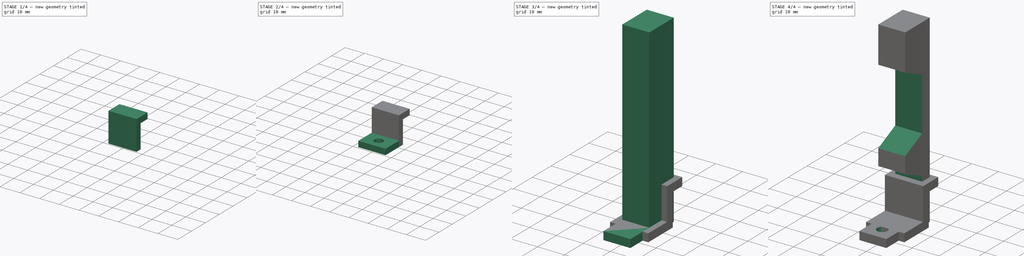
[diagram: build sequence overview — one tinted view per stage of 4, left to right]
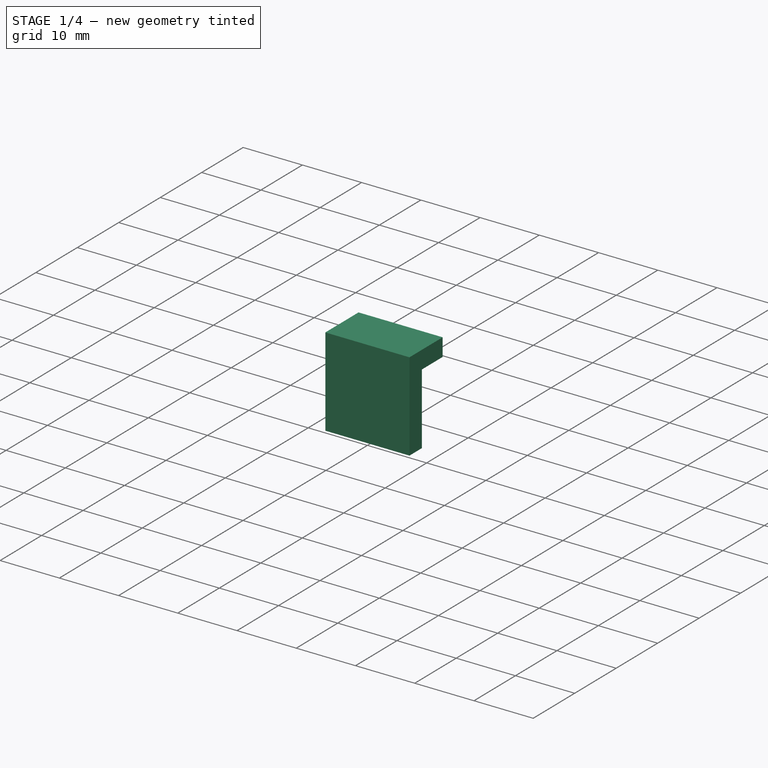
[diagram: stage 1 of 4 — iso view after this stage's code; geometry added in this stage tinted green]
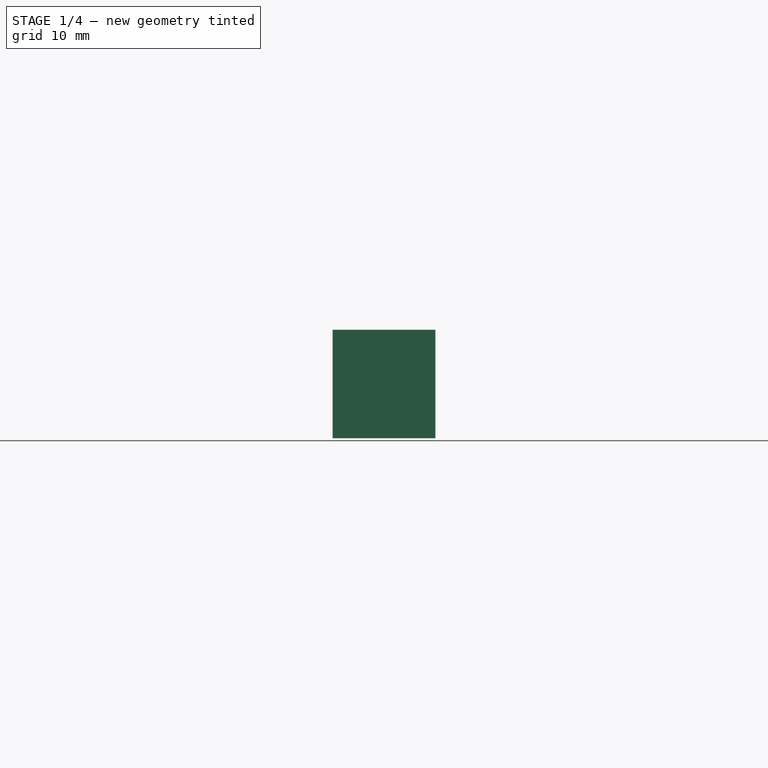
[diagram: stage 1 of 4 — front view after this stage's code; geometry added in this stage tinted green]
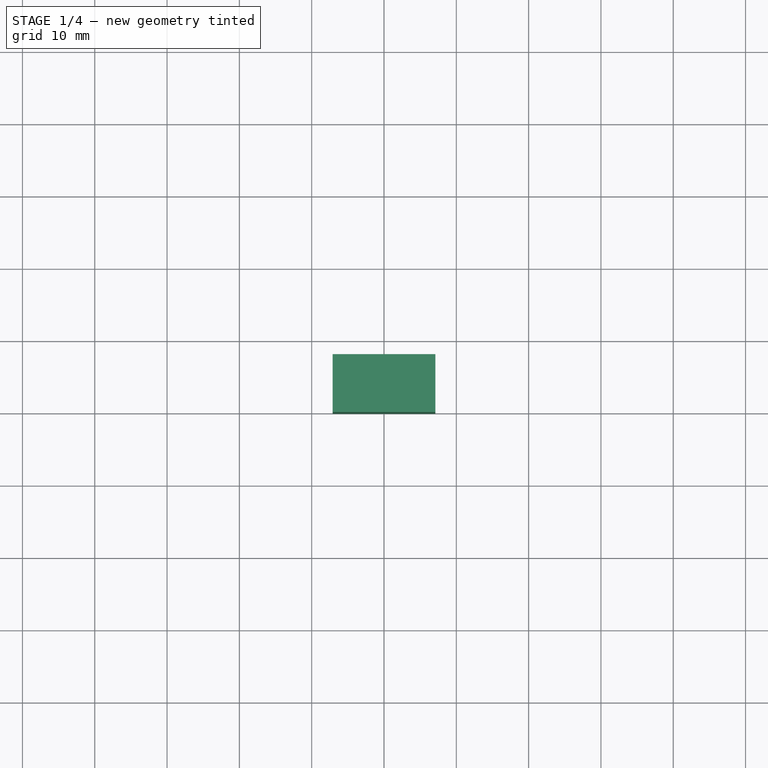
[diagram: stage 1 of 4 — top view after this stage's code; geometry added in this stage tinted green]
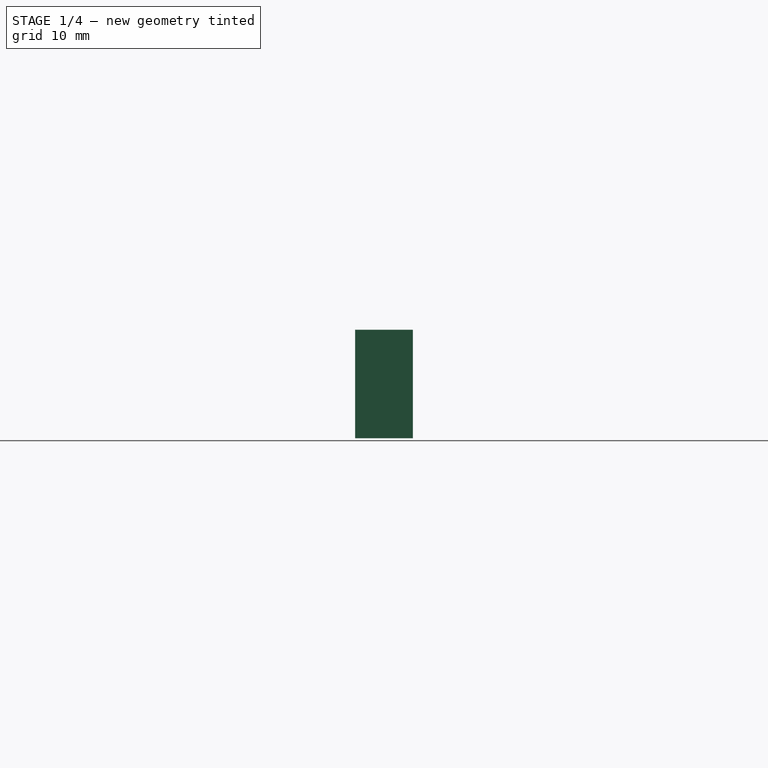
[diagram: stage 1 of 4 — right view after this stage's code; geometry added in this stage tinted green]
FCSTD DOCUMENT  (FreeCAD 0.18R14555 (Git shallow))
Label: MotorControllerMount
License: All rights reserved
LicenseURL: http://en.wikipedia.org/wiki/All_rights_reserved
objects: Sketcher::SketchObject×9, PartDesign::Pad×5, PartDesign::Hole×3, PartDesign::Body×2, PartDesign::Pocket×1
note: 29 computed .brp shape members not serialized (recipe doc carries the construction recipe); baked Part::Feature solids carry a one-line shape summary decoded from their .brp

FEATURE [PartDesign::Body] Body  label="Body1"
  Group = -> [Sketch,Pad,Sketch001,Pad001,Sketch002,Hole,Sketch003,Pocket,Sketch004,Hole001]
  Origin = -> Origin
  Tip = -> Hole001
FEATURE [Sketcher::SketchObject] Sketch005
  MapMode = 5
  Support = -> [XY_Plane001]
  sketch-geometry (8):
    g0: LineSegment StartX=-2.1 StartY=8 StartZ=0 EndX=-2.1 EndY=3 EndZ=0
    g1: LineSegment StartX=-2.1 StartY=3 StartZ=0 EndX=-7.1 EndY=3 EndZ=0
    g2: LineSegment StartX=-7.1 StartY=3 StartZ=0 EndX=-7.1 EndY=0 EndZ=0
    g3: LineSegment StartX=-7.1 StartY=0 StartZ=0 EndX=7.1 EndY=0 EndZ=0
    g4: LineSegment StartX=7.1 StartY=0 StartZ=0 EndX=7.1 EndY=3 EndZ=0
    g5: LineSegment StartX=7.1 StartY=3 StartZ=0 EndX=2.1 EndY=3 EndZ=0
    g6: LineSegment StartX=2.1 StartY=3 StartZ=0 EndX=2.1 EndY=8 EndZ=0
    g7: LineSegment StartX=2.1 StartY=8 StartZ=0 EndX=-2.1 EndY=8 EndZ=0
  constraints (22):
    c: Coincident(g0,g1)
    c: Coincident(g1,g2)
    c: Coincident(g2,g3)
    c: Coincident(g3,g4)
    c: Coincident(g4,g5)
    c: Coincident(g5,g6)
    c: Coincident(g6,g7)
    c: Coincident(g7,g0)
    c: DistanceX(g7,g7) = 4.2
    c: Symmetric(g2,g3,g-2)
    c: Symmetric(g0,g6,g-2)
    c: Vertical(g2)
    c: Vertical(g4)
    c: Horizontal(g1)
    c: Horizontal(g5)
    c: Vertical(g0)
    c: Vertical(g6)
    c: Horizontal(g5,g0)
    c: DistanceY(g6,g6) = 5
    c: DistanceX(g5,g5) = 5
    c: DistanceY(g4,g4) = 3
    c: PointOnObject(g2,g-1)
FEATURE [PartDesign::Pad] Pad002
  Length = 15
  Length2 = 100
  Profile = -> Sketch005
  Type = 0
FEATURE [Sketcher::SketchObject] Sketch006
  ExternalGeometry = -> [Pad002]
  MapMode = 5
  Placement = pos=(2.1,0,0) rot=(0.57735,0.57735,0.57735;2.0944rad)
  Support = -> [Pad002]
  sketch-geometry (4):
    g0: LineSegment StartX=3 StartY=15 StartZ=0 EndX=8 EndY=15 EndZ=0
    g1: LineSegment StartX=8 StartY=15 StartZ=0 EndX=8 EndY=12 EndZ=0
    g2: LineSegment StartX=8 StartY=12 StartZ=0 EndX=3 EndY=12 EndZ=0
    g3: LineSegment StartX=3 StartY=12 StartZ=0 EndX=3 EndY=15 EndZ=0
  constraints (10):
    c: Coincident(g0,g1)
    c: Coincident(g1,g2)
    c: Coincident(g2,g3)
    c: Coincident(g3,g0)
    c: Horizontal(g2)
    c: Vertical(g1)
    c: Vertical(g3)
    c: DistanceY(g-3,g1) = 12
    c: Coincident(g0,g-3)
    c: Coincident(g0,g-4)
FEATURE [PartDesign::Pad] Pad003
  BaseFeature = -> Pad002
  Length = 5
  Length2 = 9.2
  Profile = -> Sketch006
  Type = 4
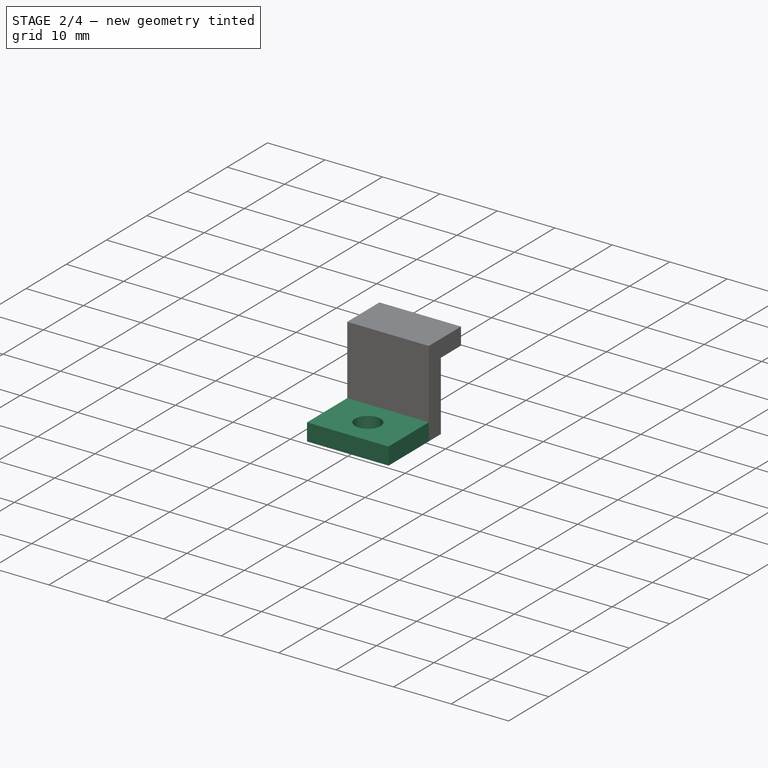
[diagram: stage 2 of 4 — iso view after this stage's code; geometry added in this stage tinted green]
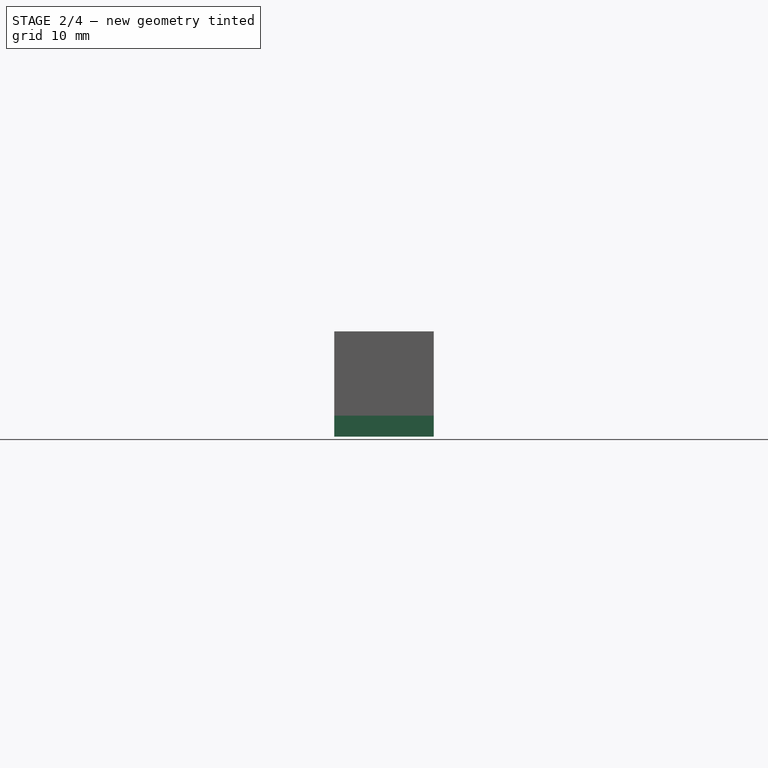
[diagram: stage 2 of 4 — front view after this stage's code; geometry added in this stage tinted green]
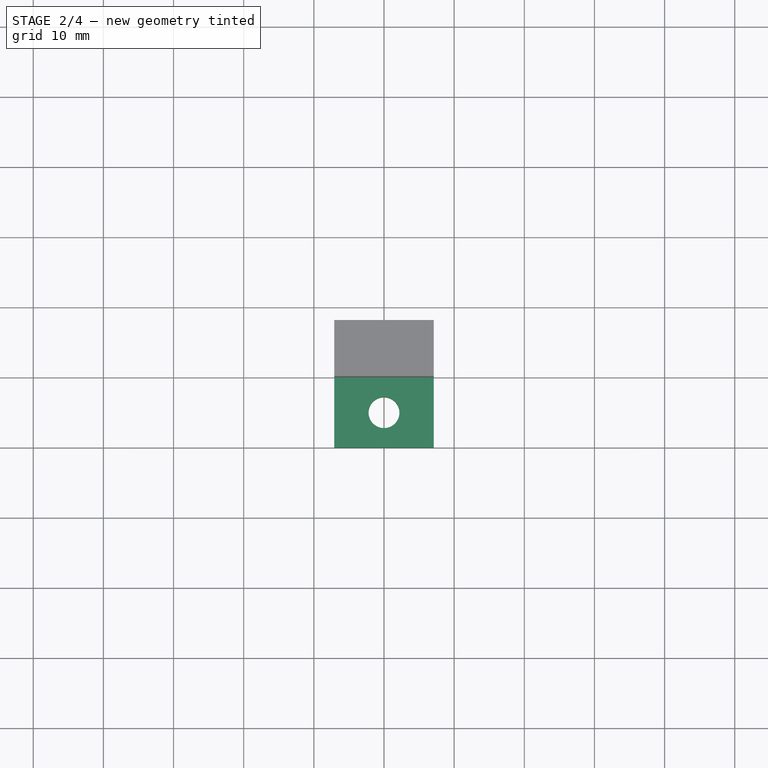
[diagram: stage 2 of 4 — top view after this stage's code; geometry added in this stage tinted green]
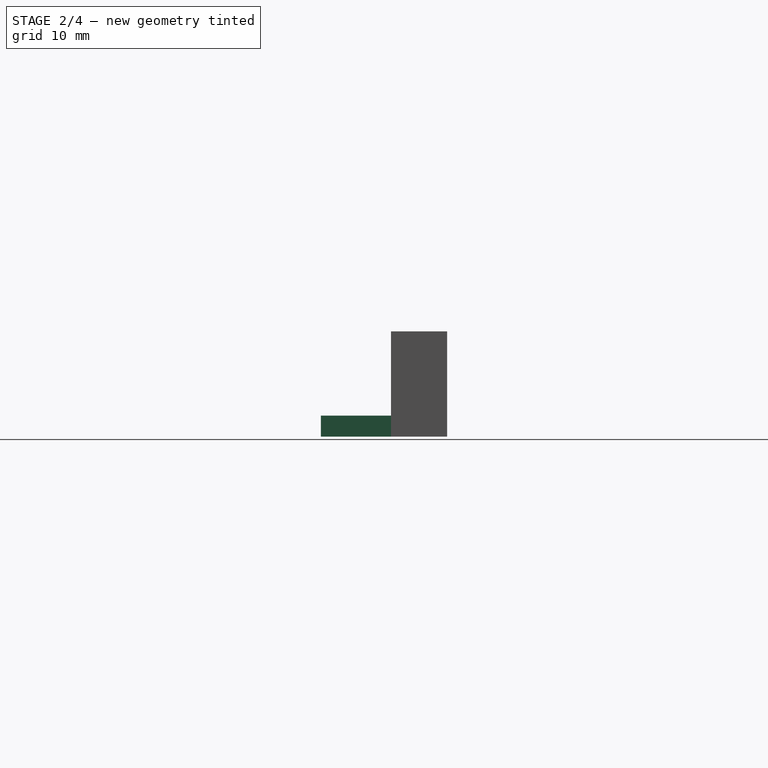
[diagram: stage 2 of 4 — right view after this stage's code; geometry added in this stage tinted green]
FEATURE [Sketcher::SketchObject] Sketch007
  ExternalGeometry = -> [Pad003]
  MapMode = 5
  Placement = pos=(0,0,0) rot=(1,0,0;1.5708rad)
  Support = -> [Pad003]
  sketch-geometry (4):
    g0: LineSegment StartX=-7.1 StartY=3 StartZ=0 EndX=7.1 EndY=3 EndZ=0
    g1: LineSegment StartX=7.1 StartY=3 StartZ=0 EndX=7.1 EndY=0 EndZ=0
    g2: LineSegment StartX=7.1 StartY=0 StartZ=0 EndX=-7.1 EndY=0 EndZ=0
    g3: LineSegment StartX=-7.1 StartY=0 StartZ=0 EndX=-7.1 EndY=3 EndZ=0
  constraints (10):
    c: Coincident(g0,g1)
    c: Coincident(g1,g2)
    c: Coincident(g2,g3)
    c: Coincident(g3,g0)
    c: Horizontal(g0)
    c: Vertical(g1)
    c: Vertical(g3)
    c: Coincident(g1,g-3)
    c: Coincident(g2,g-3)
    c: DistanceY(g1,g1) = 3
FEATURE [PartDesign::Pad] Pad004
  BaseFeature = -> Pad003
  Length = 10
  Length2 = 100
  Profile = -> Sketch007
  Type = 0
FEATURE [Sketcher::SketchObject] Sketch008
  ExternalGeometry = -> [Pad004]
  MapMode = 5
  Placement = pos=(0,7e-16,3) rot=(0,0,1;0rad)
  Support = -> [Pad004]
  sketch-geometry (3):
    g0: LineSegment [constr] StartX=-7.1 StartY=0 StartZ=0 EndX=7.1 EndY=-10 EndZ=0
    g1: LineSegment [constr] StartX=7.1 StartY=0 StartZ=0 EndX=-7.1 EndY=-10 EndZ=0
    g2: Circle CenterX=1e-16 CenterY=-5 CenterZ=0 NormalX=0 NormalY=0 NormalZ=1 AngleXU=0 Radius=1.5
  constraints (7):
    c: Coincident(g1,g-3)
    c: Coincident(g-4,g1)
    c: Coincident(g0,g-4)
    c: Coincident(g0,g-3)
    c: Radius(g2) = 1.5
    c: PointOnObject(g2,g0)
    c: PointOnObject(g2,g1)
FEATURE [PartDesign::Hole] Hole002
  BaseFeature = -> Pad004
  Depth = 25
  DepthType = 0
  Diameter = 4.4
  DrillPoint = 1
  DrillPointAngle = 118
  HoleCutCountersinkAngle = 90
  HoleCutDepth = 0
  HoleCutDiameter = 4
  HoleCutType = 0
  ModelActualThread = false
  Profile = -> Sketch008
  Tapered = false
  TaperedAngle = 90
  ThreadAngle = 0
  ThreadClass = 0
  ThreadCutOffInner = 0
  ThreadCutOffOuter = 0
  ThreadDirection = 0
  ThreadFit = 0
  ThreadPitch = 0
  ThreadSize = 11
  ThreadType = 2
  Threaded = false
FEATURE [PartDesign::Body] Body001  label="Body2"
  Group = -> [Sketch005,Pad002,Sketch006,Pad003,Sketch007,Pad004,Sketch008,Hole002]
  Origin = -> Origin001
  Tip = -> Hole002
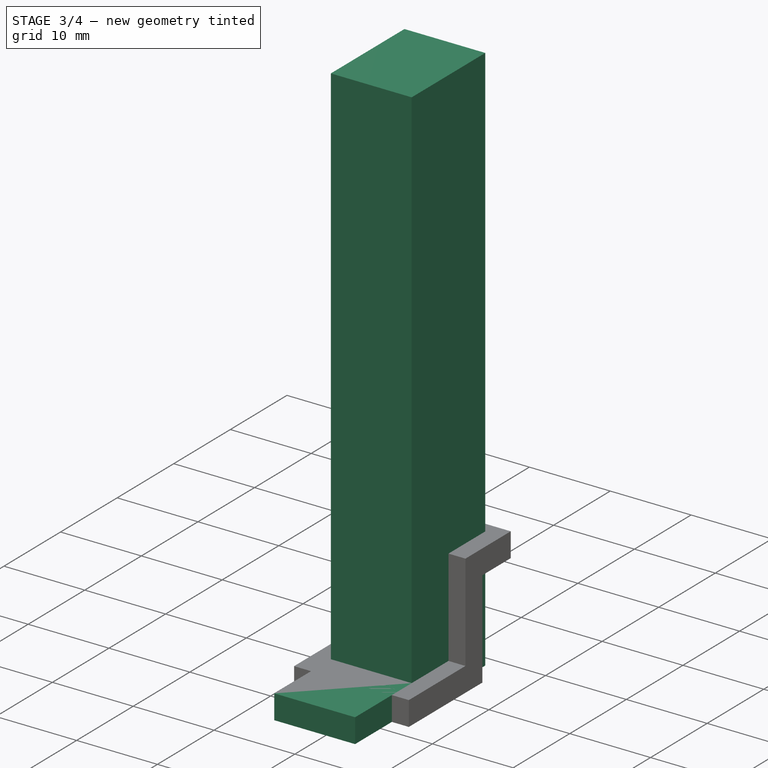
[diagram: stage 3 of 4 — iso view after this stage's code; geometry added in this stage tinted green]
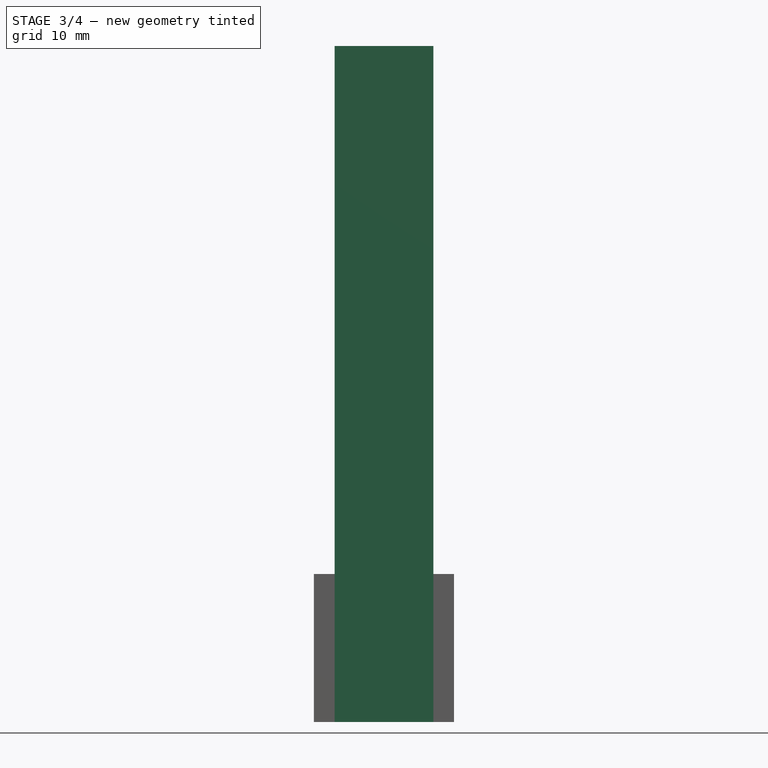
[diagram: stage 3 of 4 — front view after this stage's code; geometry added in this stage tinted green]
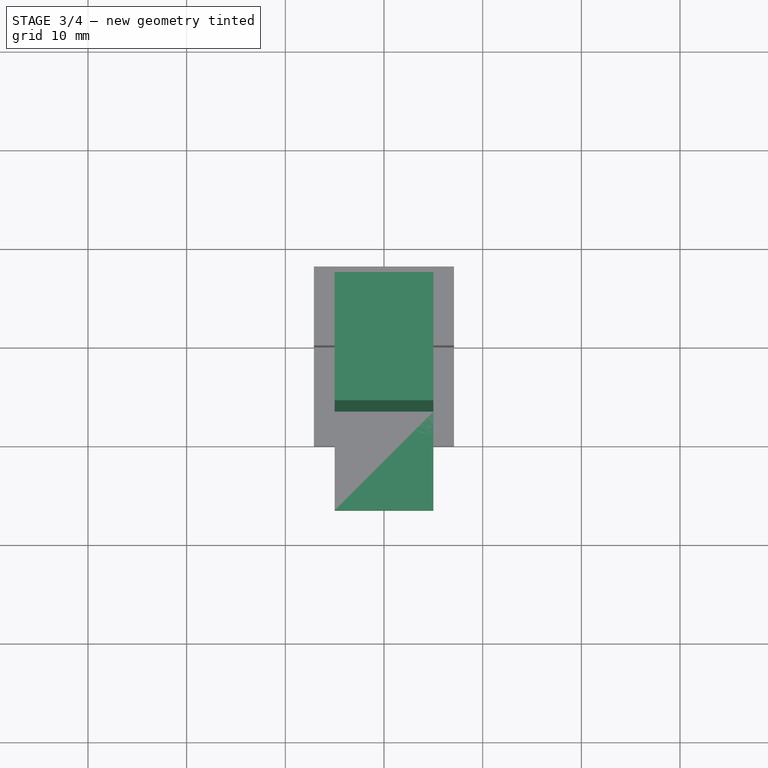
[diagram: stage 3 of 4 — top view after this stage's code; geometry added in this stage tinted green]
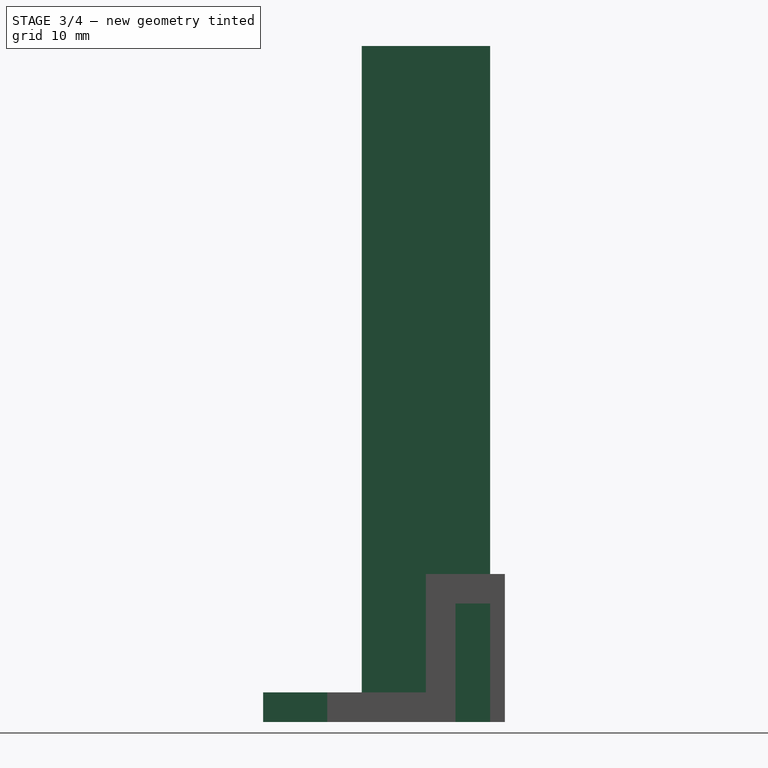
[diagram: stage 3 of 4 — right view after this stage's code; geometry added in this stage tinted green]
FEATURE [Sketcher::SketchObject] Sketch
  MapMode = 5
  Support = -> [XY_Plane]
  sketch-geometry (4):
    g0: LineSegment StartX=-5 StartY=6.5 StartZ=0 EndX=5 EndY=6.5 EndZ=0
    g1: LineSegment StartX=5 StartY=6.5 StartZ=0 EndX=5 EndY=-6.5 EndZ=0
    g2: LineSegment StartX=5 StartY=-6.5 StartZ=0 EndX=-5 EndY=-6.5 EndZ=0
    g3: LineSegment StartX=-5 StartY=-6.5 StartZ=0 EndX=-5 EndY=6.5 EndZ=0
  constraints (10):
    c: Coincident(g0,g1)
    c: Coincident(g1,g2)
    c: Coincident(g2,g3)
    c: Coincident(g3,g0)
    c: Horizontal(g2)
    c: Vertical(g3)
    c: Symmetric(g0,g0,g-2)
    c: Symmetric(g1,g0,g-1)
    c: DistanceX(g2,g2) = 10
    c: DistanceY(g1,g1) = 13
FEATURE [PartDesign::Pad] Pad
  Length = 68.5
  Length2 = 100
  Profile = -> Sketch
  Type = 0
FEATURE [Sketcher::SketchObject] Sketch001
  ExternalGeometry = -> [Pad]
  MapMode = 5
  Placement = pos=(0,-6.5,0) rot=(1,0,0;1.5708rad)
  Support = -> [Pad]
  sketch-geometry (4):
    g0: LineSegment StartX=-5 StartY=3 StartZ=0 EndX=5 EndY=3 EndZ=0
    g1: LineSegment StartX=5 StartY=3 StartZ=0 EndX=5 EndY=0 EndZ=0
    g2: LineSegment StartX=5 StartY=0 StartZ=0 EndX=-5 EndY=0 EndZ=0
    g3: LineSegment StartX=-5 StartY=0 StartZ=0 EndX=-5 EndY=3 EndZ=0
  constraints (10):
    c: Coincident(g0,g1)
    c: Coincident(g1,g2)
    c: Coincident(g2,g3)
    c: Coincident(g3,g0)
    c: Horizontal(g0)
    c: Vertical(g1)
    c: Vertical(g3)
    c: Coincident(g2,g-3)
    c: Coincident(g1,g-3)
    c: DistanceY(g1,g1) = 3
FEATURE [PartDesign::Pad] Pad001
  BaseFeature = -> Pad
  Length = 10
  Length2 = 100
  Profile = -> Sketch001
  Type = 0
FEATURE [Sketcher::SketchObject] Sketch002
  MapMode = 5
  Placement = pos=(0,6.5,0) rot=(0,0.707107,0.707107;3.14159rad)
  Support = -> [Pad001]
  sketch-geometry (2):
    g0: Circle CenterX=0 CenterY=58.15 CenterZ=0 NormalX=0 NormalY=0 NormalZ=1 AngleXU=0 Radius=2
    g1: Circle CenterX=0 CenterY=23.9 CenterZ=0 NormalX=0 NormalY=0 NormalZ=1 AngleXU=0 Radius=2
  constraints (6):
    c: Equal(g0,g1)
    c: Radius(g1) = 2
    c: PointOnObject(g1,g-2)
    c: PointOnObject(g0,g-2)
    c: Distance(g-1,g1) = 23.9
    c: Distance(g0,g1) = 34.25
FEATURE [PartDesign::Hole] Hole
  BaseFeature = -> Pad001
  Depth = 10
  DepthType = 0
  Diameter = 3.85
  DrillPoint = 1
  DrillPointAngle = 118
  HoleCutCountersinkAngle = 90
  HoleCutDepth = 0
  HoleCutDiameter = 3.5
  HoleCutType = 0
  ModelActualThread = false
  Profile = -> Sketch002
  Tapered = false
  TaperedAngle = 90
  ThreadAngle = 0
  ThreadClass = 0
  ThreadCutOffInner = 0
  ThreadCutOffOuter = 0
  ThreadDirection = 0
  ThreadFit = 0
  ThreadPitch = 0
  ThreadSize = 10
  ThreadType = 2
  Threaded = false
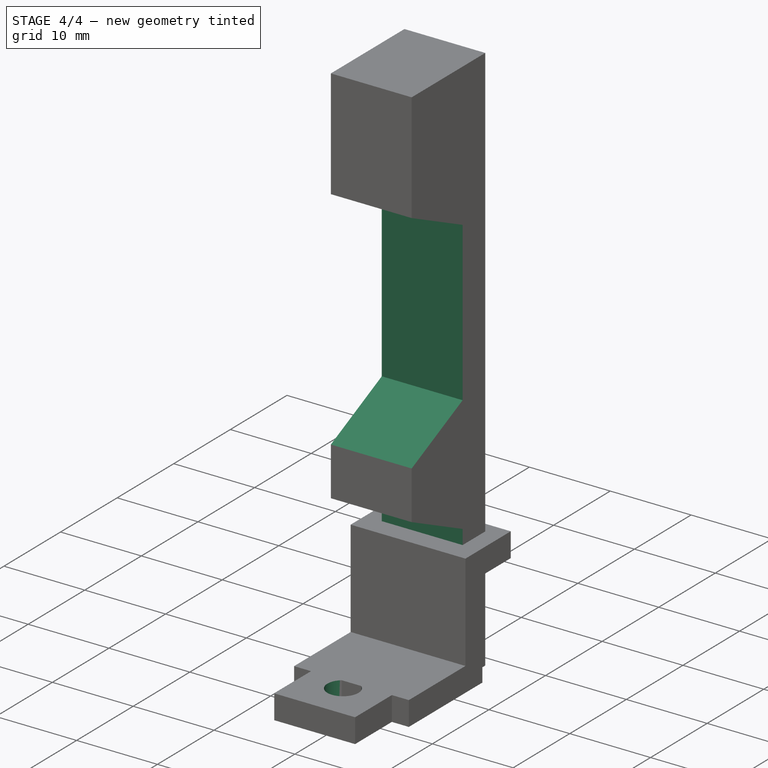
[diagram: stage 4 of 4 — iso view after this stage's code; geometry added in this stage tinted green]
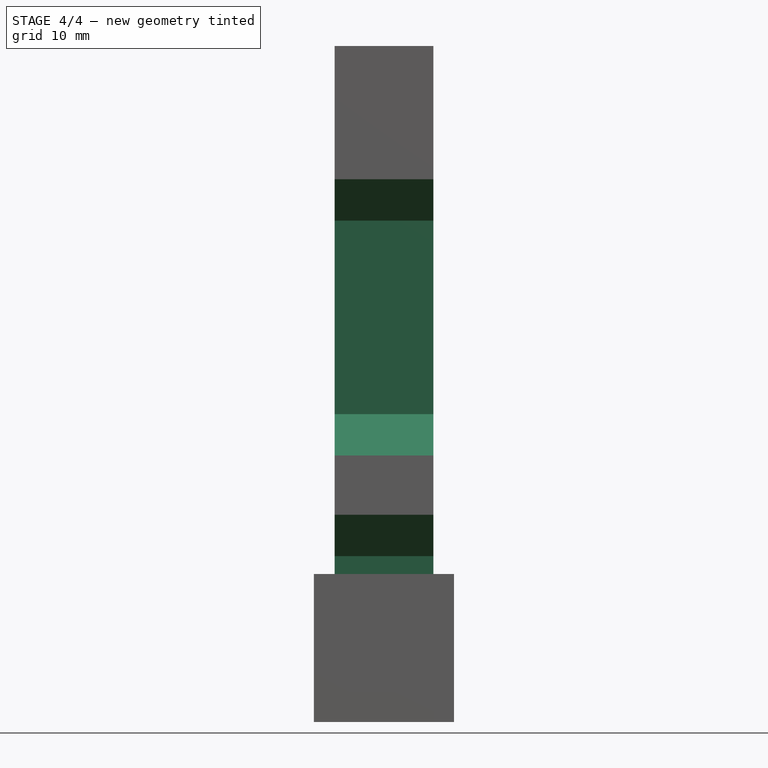
[diagram: stage 4 of 4 — front view after this stage's code; geometry added in this stage tinted green]
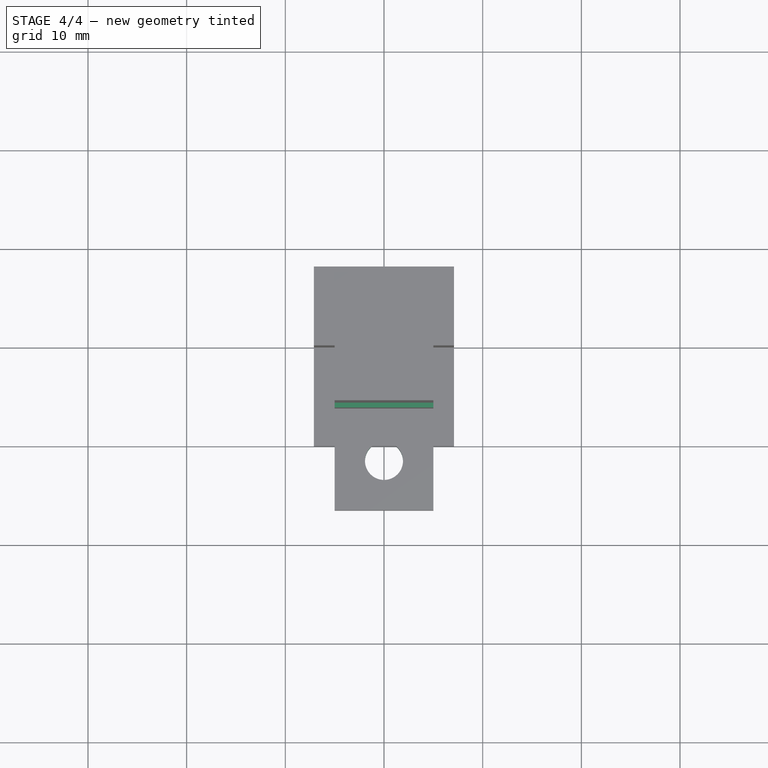
[diagram: stage 4 of 4 — top view after this stage's code; geometry added in this stage tinted green]
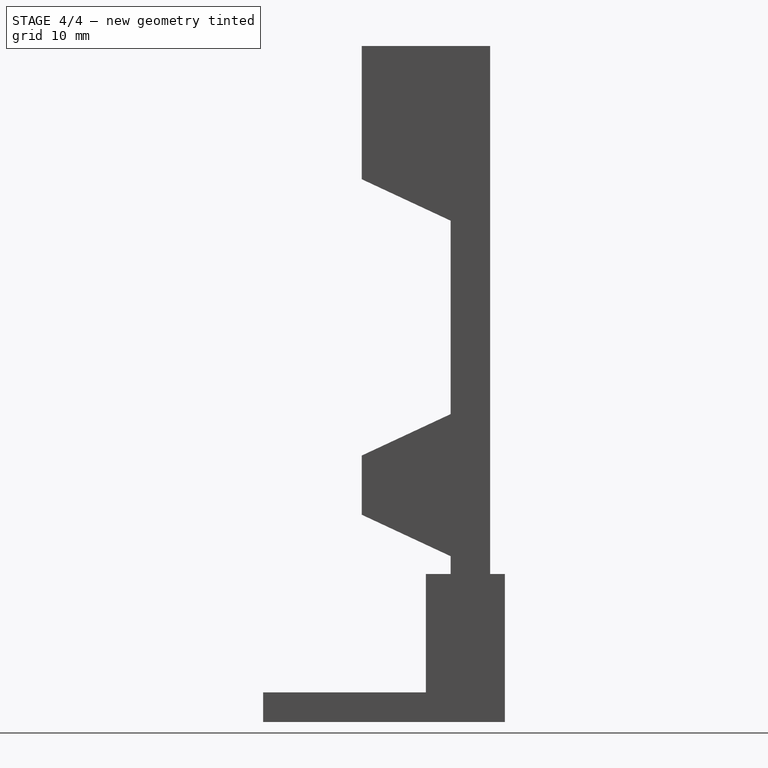
[diagram: stage 4 of 4 — right view after this stage's code; geometry added in this stage tinted green]
FEATURE [Sketcher::SketchObject] Sketch003
  ExternalGeometry = -> [Hole]
  MapMode = 5
  Placement = pos=(-5,0,0) rot=(0.57735,-0.57735,-0.57735;2.0944rad)
  Support = -> [Hole]
  sketch-geometry (8):
    g0: LineSegment StartX=6.5 StartY=55 StartZ=0 EndX=-2.5 EndY=50.8032 EndZ=0
    g1: LineSegment StartX=-2.5 StartY=50.8032 StartZ=0 EndX=-2.5 EndY=31.1968 EndZ=0
    g2: LineSegment StartX=-2.5 StartY=31.1968 StartZ=0 EndX=6.5 EndY=27 EndZ=0
    g3: LineSegment StartX=6.5 StartY=27 StartZ=0 EndX=6.5 EndY=55 EndZ=0
    g4: LineSegment StartX=6.5 StartY=21 StartZ=0 EndX=-2.5 EndY=16.8032 EndZ=0
    g5: LineSegment StartX=-2.5 StartY=16.8032 StartZ=0 EndX=-2.5 EndY=3 EndZ=0
    g6: LineSegment StartX=-2.5 StartY=3 StartZ=0 EndX=6.5 EndY=3 EndZ=0
    g7: LineSegment StartX=6.5 StartY=3 StartZ=0 EndX=6.5 EndY=21 EndZ=0
  constraints (23):
    c: Coincident(g0,g1)
    c: Coincident(g1,g2)
    c: Coincident(g2,g3)
    c: Coincident(g3,g0)
    c: Vertical(g1)
    c: Vertical(g3)
    c: PointOnObject(g2,g-3)
    c: Angle(g3,g2) = 1.13446
    c: Angle(g0,g3) = 1.13446
    c: DistanceY(g3,g3) = 28
    c: Distance(g0,g-4) = 4
    c: Coincident(g4,g5)
    c: Coincident(g5,g6)
    c: Coincident(g7,g4)
    c: Coincident(g7,g6)
    c: Coincident(g7,g-3)
    c: Horizontal(g6)
    c: Angle(g4,g7) = 1.13446
    c: Vertical(g7)
    c: Vertical(g5)
    c: Vertical(g4,g1)
    c: DistanceY(g-1,g4) = 21
    c: DistanceY(g4,g2) = 6
FEATURE [PartDesign::Pocket] Pocket
  BaseFeature = -> Hole
  Length = 5
  Length2 = 100
  Profile = -> Sketch003
  Type = 1
FEATURE [Sketcher::SketchObject] Sketch004
  ExternalGeometry = -> [Pocket]
  MapMode = 5
  Placement = pos=(0,7e-16,3) rot=(0,0,1;0rad)
  Support = -> [Pocket]
  sketch-geometry (3):
    g0: Circle CenterX=-2e-16 CenterY=-11.5 CenterZ=0 NormalX=0 NormalY=0 NormalZ=1 AngleXU=0 Radius=2
    g1: LineSegment [constr] StartX=-5 StartY=-6.5 StartZ=0 EndX=5 EndY=-16.5 EndZ=0
    g2: LineSegment [constr] StartX=5 StartY=-6.5 StartZ=0 EndX=-5 EndY=-16.5 EndZ=0
  constraints (7):
    c: Coincident(g2,g-4)
    c: Coincident(g2,g-3)
    c: Coincident(g1,g-3)
    c: Coincident(g1,g-4)
    c: PointOnObject(g0,g2)
    c: PointOnObject(g0,g1)
    c: Radius(g0) = 2
FEATURE [PartDesign::Hole] Hole001
  BaseFeature = -> Pocket
  Depth = 25
  DepthType = 0
  Diameter = 3.85
  DrillPoint = 1
  DrillPointAngle = 118
  HoleCutCountersinkAngle = 90
  HoleCutDepth = 0
  HoleCutDiameter = 3.5
  HoleCutType = 0
  ModelActualThread = false
  Profile = -> Sketch004
  Tapered = false
  TaperedAngle = 90
  ThreadAngle = 0
  ThreadClass = 0
  ThreadCutOffInner = 0
  ThreadCutOffOuter = 0
  ThreadDirection = 0
  ThreadFit = 0
  ThreadPitch = 0
  ThreadSize = 10
  ThreadType = 2
  Threaded = false
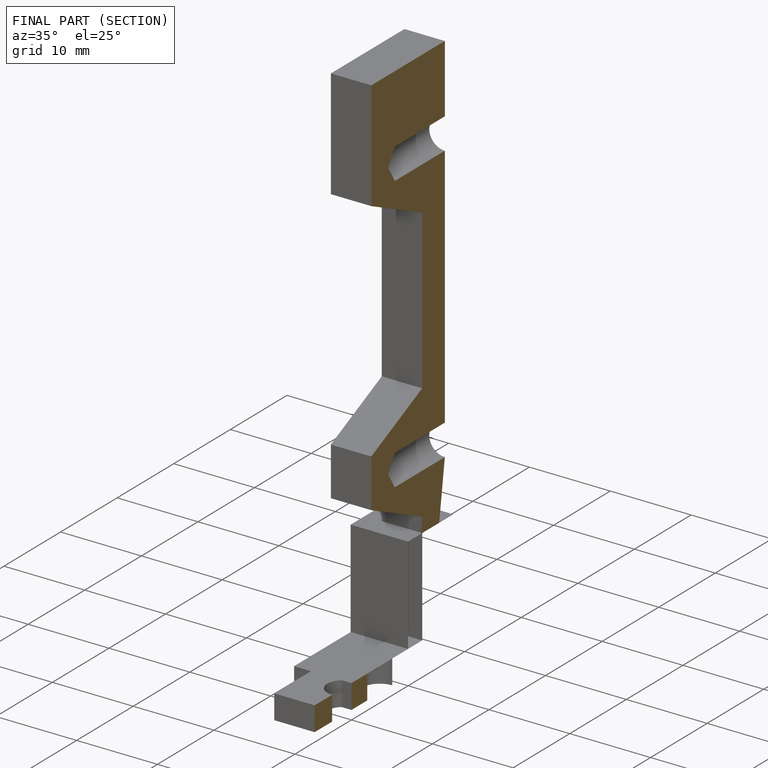
[diagram: finished part — half-section view (interior)]
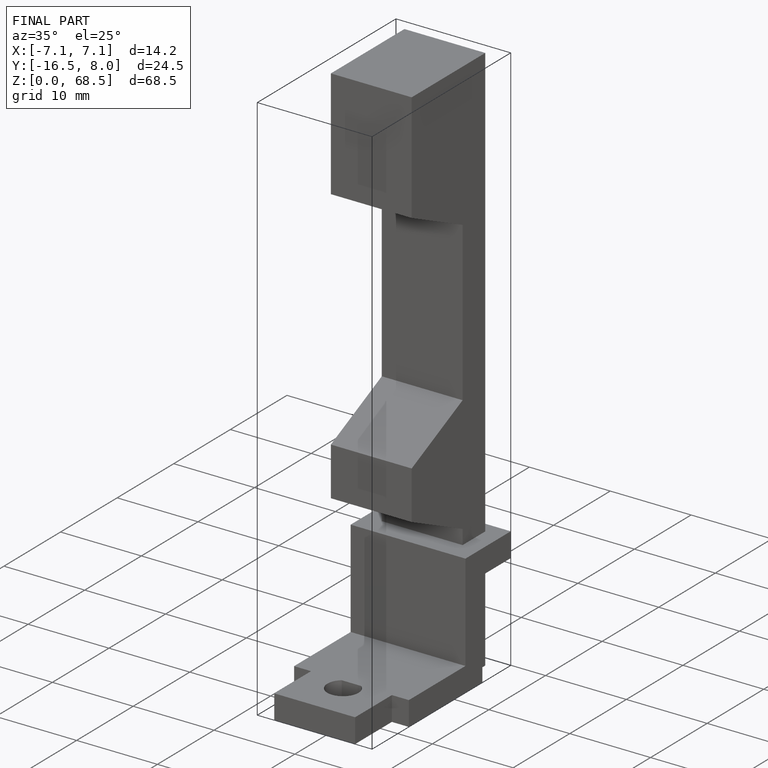
[diagram: finished part — iso view with bounding-box wireframe]
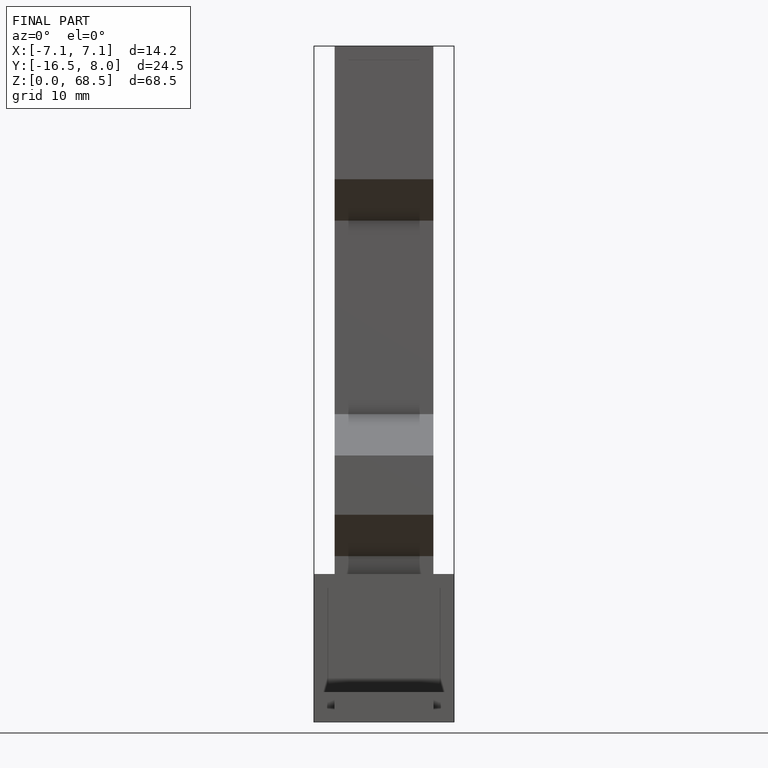
[diagram: finished part — front view with bounding-box wireframe]
